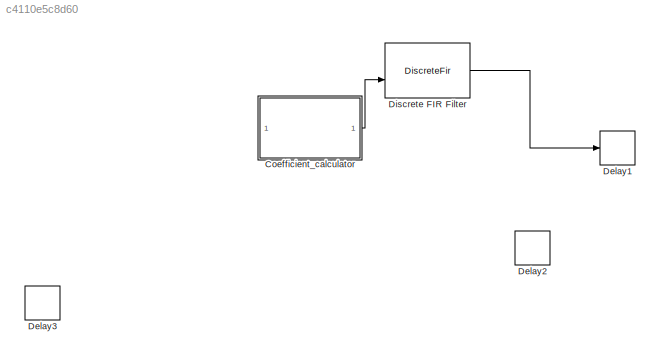
MODEL slx_c4110e5c8d60
KIND model
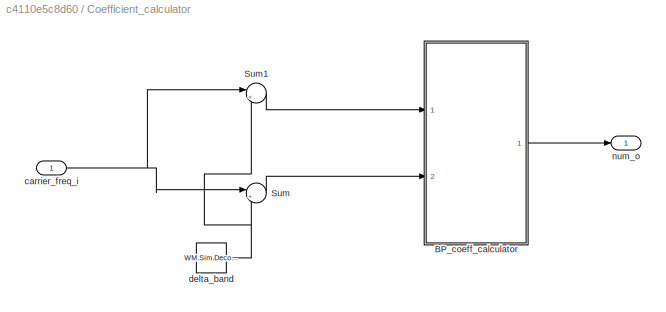
BLOCK [SubSystem] Coefficient_calculator
  FunctionWithSeparateData = off
  MaskHideContents = off
  MinAlgLoopOccurrences = off
  Opaque = off
  Ports = [1, 1]
  PropExecContextOutsideSubsystem = off
  RTWSystemCode = Auto
  RequestExecContextInheritance = off
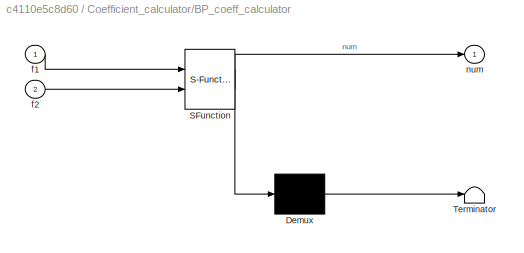
BLOCK [SubSystem] Coefficient_calculator/BP_coeff_calculator
  ErrorFcn = Stateflow.Translate.translate
  FunctionWithSeparateData = off
  MaskHideContents = off
  MinAlgLoopOccurrences = off
  Opaque = off
  PermitHierarchicalResolution = ExplicitOnly
  Ports = [2, 1]
  PropExecContextOutsideSubsystem = off
  RTWSystemCode = Auto
  RequestExecContextInheritance = off
  SFBlockType = MATLAB Function
  TreatAsAtomicUnit = on
BLOCK [Demux] Coefficient_calculator/BP_coeff_calculator/ Demux 
  Outputs = 1
  Ports = [1, 1]
BLOCK [S-Function] Coefficient_calculator/BP_coeff_calculator/ SFunction 
  EnableBusSupport = on
  FunctionName = sf_sfun
  Parameters = WM
  PortCounts = [2 2]
  Ports = [2, 2]
  Tag = Stateflow S-Function bandpass_temp 2
BLOCK [Terminator] Coefficient_calculator/BP_coeff_calculator/ Terminator 
BLOCK [Inport] Coefficient_calculator/BP_coeff_calculator/f1
  IconDisplay = Port number
BLOCK [Inport] Coefficient_calculator/BP_coeff_calculator/f2
  IconDisplay = Port number
  Port = 2
BLOCK [Outport] Coefficient_calculator/BP_coeff_calculator/num
  IconDisplay = Port number
BLOCK [Sum] Coefficient_calculator/Sum
  IconShape = round
  InputSameDT = off
  Inputs = |++
  OutDataTypeStr = Inherit: Inherit via internal rule
  Ports = [2, 1]
  SaturateOnIntegerOverflow = off
BLOCK [Sum] Coefficient_calculator/Sum1
  IconShape = round
  InputSameDT = off
  Inputs = |+-
  OutDataTypeStr = Inherit: Inherit via internal rule
  Ports = [2, 1]
  SaturateOnIntegerOverflow = off
BLOCK [Inport] Coefficient_calculator/carrier_freq_i
  IconDisplay = Port number
BLOCK [Constant] Coefficient_calculator/delta_band
  Value = WM.Sim.Decoder.Bandpass.delta_band_f
BLOCK [Outport] Coefficient_calculator/num_o
  IconDisplay = Port number
BLOCK [Delay] Delay1
  DelayLength = WM.Sim.Decoder.Bandpass.compensation_delay
  InputPortMap = u0
  InputProcessing = Columns as channels (frame based)
  Ports = [1, 1]
BLOCK [Delay] Delay2
  DelayLength = WM.Sim.Decoder.Bandpass.desired_latency
  InputPortMap = u0
  InputProcessing = Columns as channels (frame based)
  Ports = [1, 1]
BLOCK [Delay] Delay3
  DelayLength = WM.Sim.Decoder.Spreader.Latency
  InputPortMap = u0
  InputProcessing = Columns as channels (frame based)
  Ports = [1, 1]
BLOCK [DiscreteFir] Discrete FIR Filter
  CoefSource = Input port
  Coefficients = WM.Sim.Decoder.Bandpass.Hd.Numerator
  FilterStructure = Direct form transposed
  InputProcessing = Columns as channels (frame based)
  Ports = [2, 1]
  SampleTime = WM.Sim.SampleTimes.Tchannel
LINE Coefficient_calculator/BP_coeff_calculator:1 -> Coefficient_calculator/num_o:1
LINE Coefficient_calculator/Sum1:1 -> Coefficient_calculator/BP_coeff_calculator:1
LINE Coefficient_calculator/Sum:1 -> Coefficient_calculator/BP_coeff_calculator:2
NET Coefficient_calculator/carrier_freq_i:1 -> Coefficient_calculator/Sum1:1, Coefficient_calculator/Sum:1
NET Coefficient_calculator/delta_band:1 -> Coefficient_calculator/Sum1:2, Coefficient_calculator/Sum:2
LINE Coefficient_calculator:1 -> Discrete FIR Filter:2
LINE Discrete FIR Filter:1 -> Delay1:1
note: NET lines group one-source signal fan-out (src -> all destinations, sorted); 1:1 wires keep LINE
